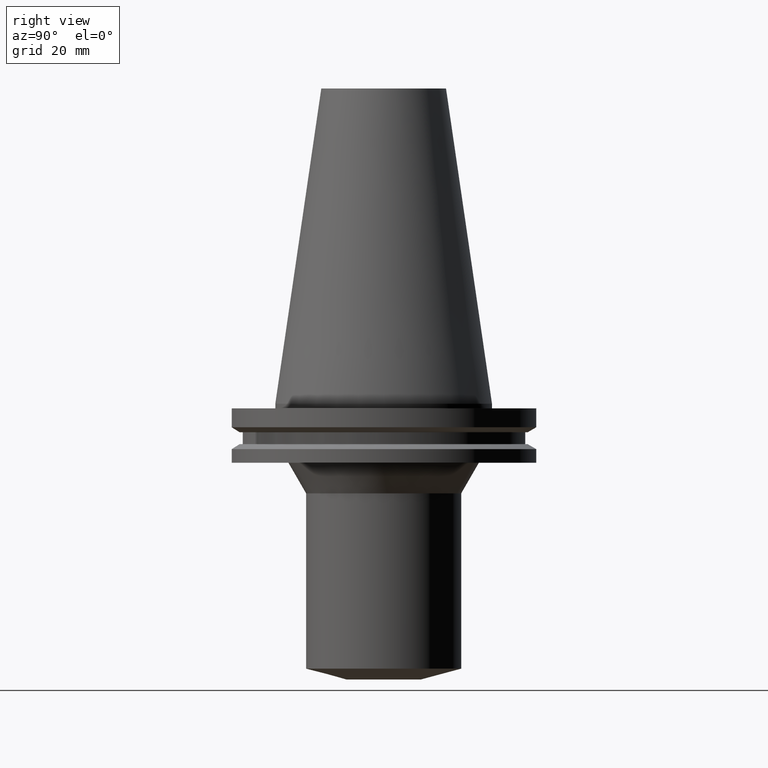
[diagram: clean part render]
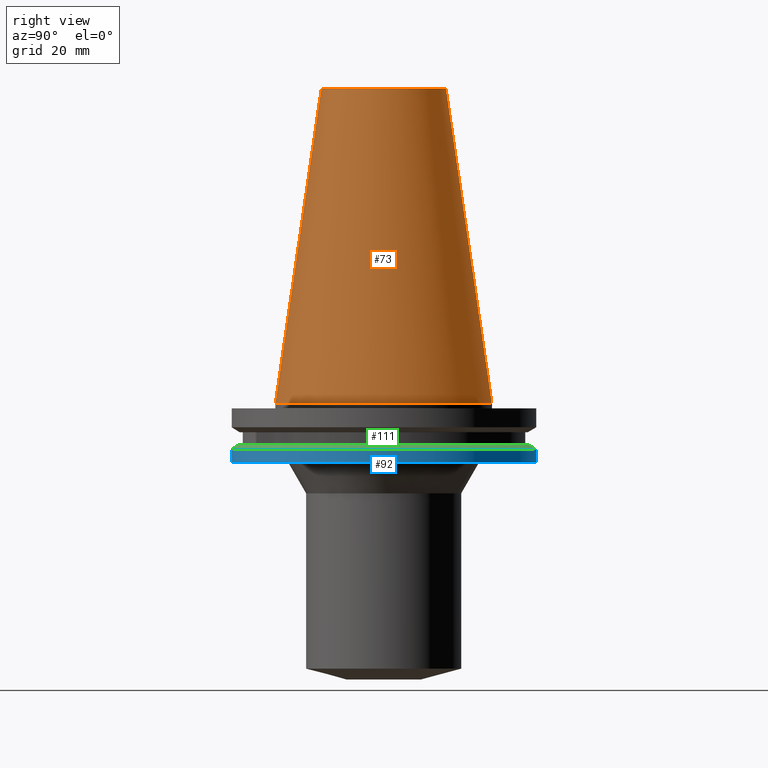
[diagram: same view with three faces highlighted in distinct colors, each labeled with its STEP entity id]
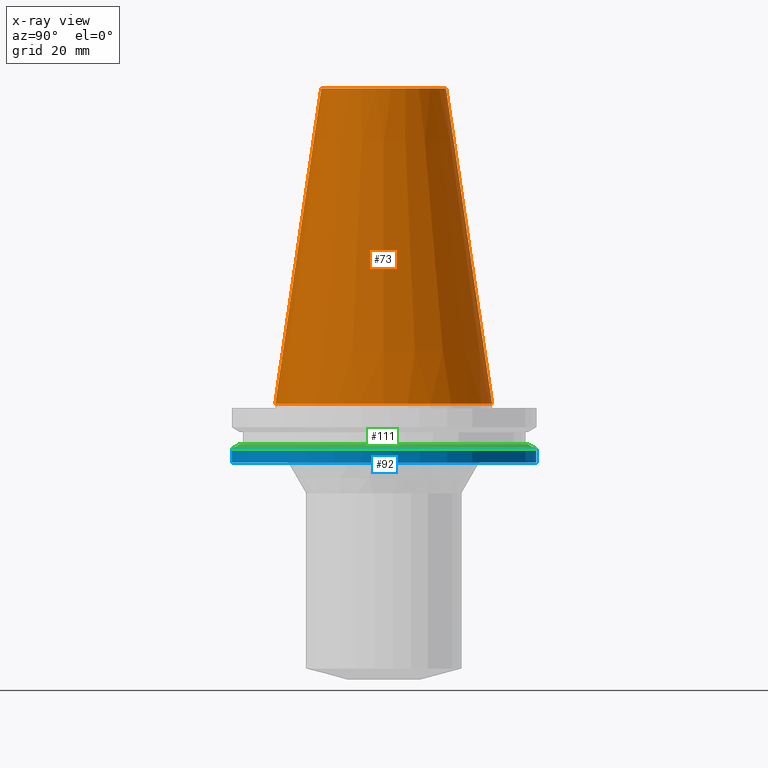
[diagram: x-ray of the same camera — body ghosted, the three highlighted faces saturated]
A machine part, right view with three faces highlighted in distinct colors.
The next image is the same camera in x-ray (body ghosted, the three faces saturated) — at least one of them is partly hidden behind the body in this view.
Their STEP definitions:

[orange] entity #73 — the highlighted conical surface has half-angle 8.297 deg.
#59=EDGE_CURVE('Unnamed[1]',#158,#158,#159,.T.);
#73=ADVANCED_FACE('Unnamed[1]',(#179,#180),#181,.T.);
#100=EDGE_CURVE('Unnamed[1]',#221,#221,#222,.T.);
#158=VERTEX_POINT('',#292);
#159=CIRCLE('',#293,20.1083333297217);
#179=FACE_BOUND('',#319,.T.);
#180=FACE_BOUND('',#320,.T.);
#181=CONICAL_SURFACE('',#321,27.5166666648609,0.144812498273746);
#221=VERTEX_POINT('',#370);
#222=CIRCLE('',#371,34.925);
#292=CARTESIAN_POINT('',(-6.22120573966855E-015,20.1083333297217,101.6));
#293=AXIS2_PLACEMENT_3D('',#448,#449,#450);
#319=EDGE_LOOP('',(#470));
#320=EDGE_LOOP('',(#471));
#321=AXIS2_PLACEMENT_3D('',#472,#473,#474);
#370=CARTESIAN_POINT('',(-4.30483861169435E-031,34.925,4.27707894602213E-015));
#371=AXIS2_PLACEMENT_3D('',#517,#518,#519);
#448=CARTESIAN_POINT('',(-6.22120573966855E-015,-1.24424114793371E-014,101.6));
#449=DIRECTION('',(6.12323399573676E-017,1.22464679914735E-016,-1.0));
#450=DIRECTION('',(-1.23259516440783E-032,1.0,1.22464679914735E-016));
#470=ORIENTED_EDGE('',*,*,#100,.F.);
#471=ORIENTED_EDGE('',*,*,#59,.T.);
#472=CARTESIAN_POINT('',(-3.11060286983428E-015,-6.22120573966855E-015,50.8));
#473=DIRECTION('',(6.12323399573677E-017,1.22464679914735E-016,-1.0));
#474=DIRECTION('',(-1.23259516440783E-032,1.0,1.22464679914735E-016));
#517=CARTESIAN_POINT('',(0.0,0.0,0.0));
#518=DIRECTION('',(6.12323399573677E-017,1.22464679914735E-016,-1.0));
#519=DIRECTION('',(-1.23259516440783E-032,1.0,1.22464679914735E-016));

[blue] entity #92 — the highlighted cylindrical surface (bore or boss wall) has radius 49.2125 mm, axis along (0, 0, -1).
#92=ADVANCED_FACE('Unnamed[1]',(#207,#208),#209,.T.);
#122=EDGE_CURVE('Unnamed[1]',#257,#257,#258,.T.);
#129=EDGE_CURVE('Unnamed[1]',#267,#267,#268,.T.);
#207=FACE_BOUND('',#353,.T.);
#208=FACE_BOUND('',#354,.T.);
#209=CYLINDRICAL_SURFACE('',#355,49.2125);
#257=VERTEX_POINT('',#414);
#258=CIRCLE('',#415,49.2125);
#267=VERTEX_POINT('',#427);
#268=CIRCLE('',#428,49.2125);
#353=EDGE_LOOP('',(#500));
#354=EDGE_LOOP('',(#501));
#355=AXIS2_PLACEMENT_3D('',#502,#503,#504);
#414=CARTESIAN_POINT('',(8.96819062732941E-016,49.2125,-14.64616677));
#415=AXIS2_PLACEMENT_3D('',#559,#560,#561);
#427=CARTESIAN_POINT('',(1.16647607618785E-015,49.2125,-19.05));
#428=AXIS2_PLACEMENT_3D('',#570,#571,#572);
#500=ORIENTED_EDGE('',*,*,#129,.F.);
#501=ORIENTED_EDGE('',*,*,#122,.T.);
#502=CARTESIAN_POINT('',(1.0316475694604E-015,2.0632951389208E-015,-16.848083385));
#503=DIRECTION('',(6.12323399573677E-017,1.22464679914735E-016,-1.0));
#504=DIRECTION('',(-1.23259516440783E-032,1.0,1.22464679914735E-016));
#559=CARTESIAN_POINT('',(8.96819062732942E-016,1.79363812546588E-015,-14.64616677));
#560=DIRECTION('',(6.12323399573677E-017,1.22464679914735E-016,-1.0));
#561=DIRECTION('',(-1.23259516440783E-032,1.0,1.22464679914735E-016));
#570=CARTESIAN_POINT('',(1.16647607618785E-015,2.33295215237571E-015,-19.05));
#571=DIRECTION('',(6.12323399573677E-017,1.22464679914735E-016,-1.0));
#572=DIRECTION('',(-1.23259516440783E-032,1.0,1.22464679914735E-016));

[green] entity #111 — the highlighted conical surface has half-angle 60 deg.
#70=EDGE_CURVE('Unnamed[1]',#175,#175,#176,.T.);
#111=ADVANCED_FACE('Unnamed[1]',(#238,#239),#240,.T.);
#122=EDGE_CURVE('Unnamed[1]',#257,#257,#258,.T.);
#175=VERTEX_POINT('',#314);
#176=CIRCLE('',#315,46.43053755);
#238=FACE_BOUND('',#391,.T.);
#239=FACE_BOUND('',#392,.T.);
#240=CONICAL_SURFACE('',#393,47.821518775,1.04719755103023);
#257=VERTEX_POINT('',#414);
#258=CIRCLE('',#415,49.2125);
#314=CARTESIAN_POINT('',(7.98469713044073E-016,46.43053755,-13.04));
#315=AXIS2_PLACEMENT_3D('',#466,#467,#468);
#391=EDGE_LOOP('',(#536));
#392=EDGE_LOOP('',(#537));
#393=AXIS2_PLACEMENT_3D('',#538,#539,#540);
#414=CARTESIAN_POINT('',(8.96819062732941E-016,49.2125,-14.64616677));
#415=AXIS2_PLACEMENT_3D('',#559,#560,#561);
#466=CARTESIAN_POINT('',(7.98469713044074E-016,1.59693942608815E-015,-13.04));
#467=DIRECTION('',(6.12323399573677E-017,1.22464679914735E-016,-1.0));
#468=DIRECTION('',(-1.23259516440783E-032,1.0,1.22464679914735E-016));
#536=ORIENTED_EDGE('',*,*,#122,.F.);
#537=ORIENTED_EDGE('',*,*,#70,.T.);
#538=CARTESIAN_POINT('',(8.47644387888508E-016,1.69528877577702E-015,-13.843083385));
#539=DIRECTION('',(6.12323399573677E-017,1.22464679914735E-016,-1.0));
#540=DIRECTION('',(-1.23259516440783E-032,1.0,1.22464679914735E-016));
#559=CARTESIAN_POINT('',(8.96819062732942E-016,1.79363812546588E-015,-14.64616677));
#560=DIRECTION('',(6.12323399573677E-017,1.22464679914735E-016,-1.0));
#561=DIRECTION('',(-1.23259516440783E-032,1.0,1.22464679914735E-016));